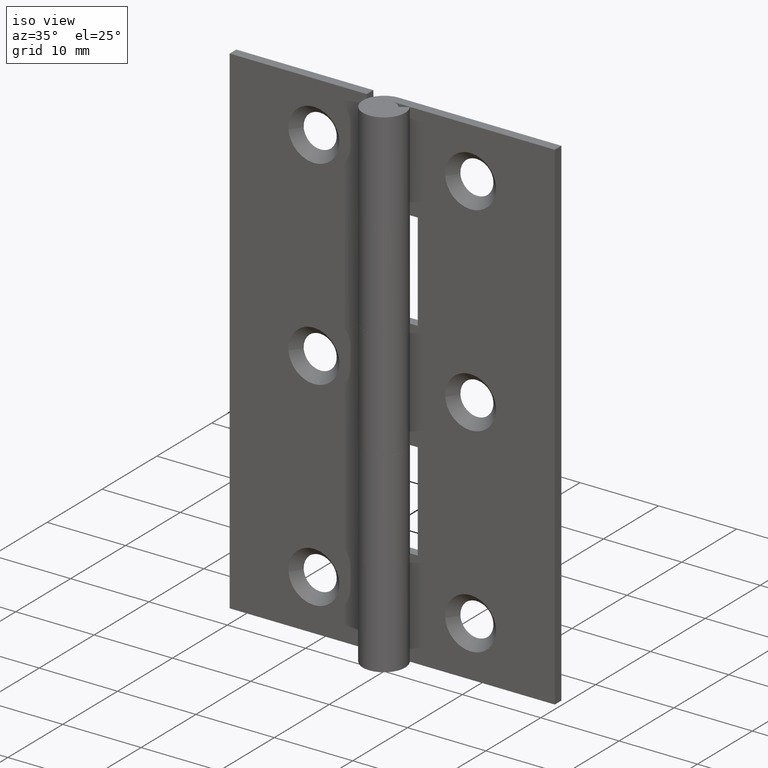
[diagram: clean part render]
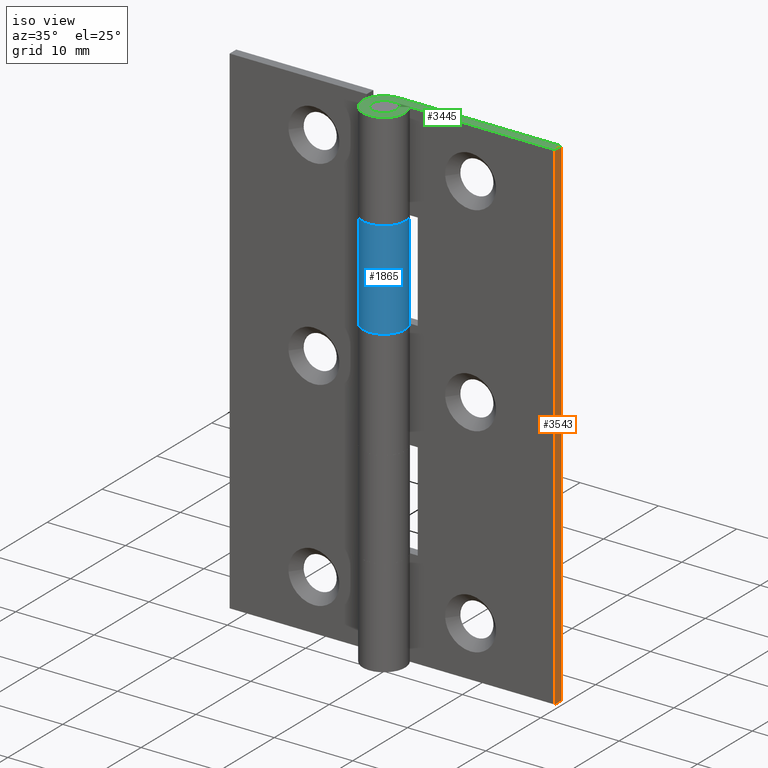
[diagram: same view with three faces highlighted in distinct colors, each labeled with its STEP entity id]
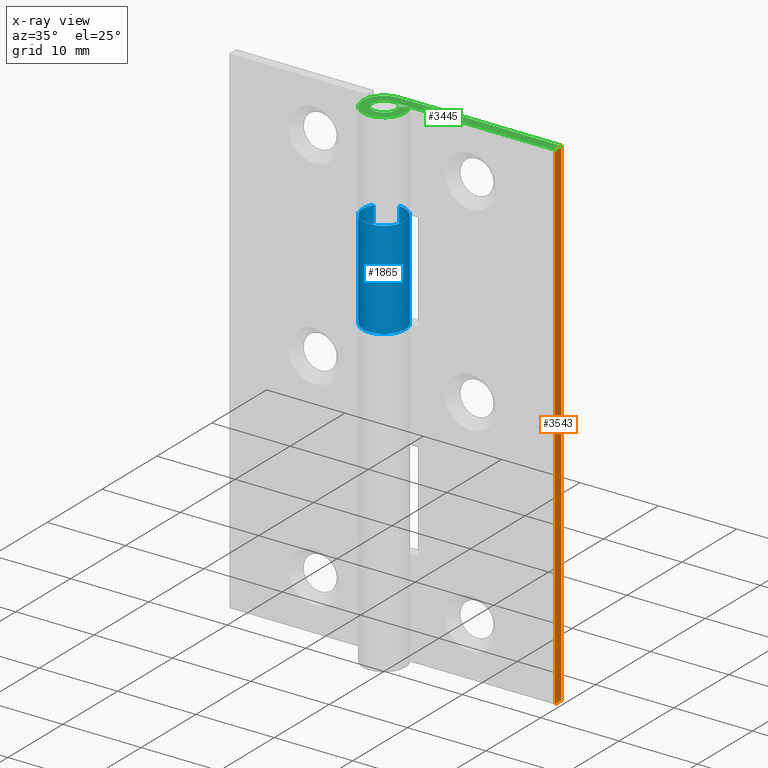
[diagram: x-ray of the same camera — body ghosted, the three highlighted faces saturated]
A machine part, iso view with three faces highlighted in distinct colors.
The next image is the same camera in x-ray (body ghosted, the three faces saturated) — at least one of them is partly hidden behind the body in this view.
Their STEP definitions:

[orange] entity #3543 — the highlighted face is a freeform B-spline surface patch.
#3375=CARTESIAN_POINT('',(20.750000000000000,1.500000000000000,64.000006999999897));
#3376=VERTEX_POINT('',#3375);
#3382=CARTESIAN_POINT('',(20.750000000000000,2.700001000000000,64.000006999999897));
#3383=VERTEX_POINT('',#3382);
#3384=CARTESIAN_POINT('',(20.750000000000000,1.500000000000000,64.000006999999897));
#3385=CARTESIAN_POINT('',(20.750000000000000,2.700001000000000,64.000006999999897));
#3386=QUASI_UNIFORM_CURVE('',1,(#3384,#3385),.UNSPECIFIED.,.F.,.U.);
#3387=EDGE_CURVE('',#3376,#3383,#3386,.T.);
#3453=CARTESIAN_POINT('',(20.750000000000000,1.500000000000000,0.0));
#3454=VERTEX_POINT('',#3453);
#3509=CARTESIAN_POINT('',(20.750000000000000,2.700001000000000,0.0));
#3510=VERTEX_POINT('',#3509);
#3516=CARTESIAN_POINT('',(20.750000000000000,1.500000000000000,0.0));
#3517=CARTESIAN_POINT('',(20.750000000000000,2.700001000000000,0.0));
#3518=QUASI_UNIFORM_CURVE('',1,(#3516,#3517),.UNSPECIFIED.,.F.,.U.);
#3519=EDGE_CURVE('',#3454,#3510,#3518,.T.);
#3524=CARTESIAN_POINT('',(20.750000000000000,1.440059952375835,67.196807826391733));
#3525=CARTESIAN_POINT('',(20.750000000000000,1.440059952375835,-3.196801970801143));
#3526=CARTESIAN_POINT('',(20.750000000000000,2.759941079810700,67.196807826391733));
#3527=CARTESIAN_POINT('',(20.750000000000000,2.759941079810700,-3.196801970801144));
#3528=B_SPLINE_SURFACE_WITH_KNOTS('',1,1,((#3524,#3526),(#3525,#3527)),.UNSPECIFIED.,.F.,.F.,.U.,(2,2),(2,2),(0.0,70.393609797192880),(0.041708334948495,0.958291687403247),.UNSPECIFIED.);
#3529=ORIENTED_EDGE('',*,*,#3387,.F.);
#3530=CARTESIAN_POINT('',(20.750000000000000,1.500000000000000,0.0));
#3531=CARTESIAN_POINT('',(20.750000000000000,1.500000000000000,64.000006999999897));
#3532=QUASI_UNIFORM_CURVE('',1,(#3530,#3531),.UNSPECIFIED.,.F.,.U.);
#3533=EDGE_CURVE('',#3454,#3376,#3532,.T.);
#3534=ORIENTED_EDGE('',*,*,#3533,.F.);
#3535=ORIENTED_EDGE('',*,*,#3519,.T.);
#3536=CARTESIAN_POINT('',(20.750000000000000,2.700001000000000,0.0));
#3537=CARTESIAN_POINT('',(20.750000000000000,2.700001000000000,64.000006999999897));
#3538=QUASI_UNIFORM_CURVE('',1,(#3536,#3537),.UNSPECIFIED.,.F.,.U.);
#3539=EDGE_CURVE('',#3510,#3383,#3538,.T.);
#3540=ORIENTED_EDGE('',*,*,#3539,.T.);
#3541=EDGE_LOOP('',(#3529,#3534,#3535,#3540));
#3542=FACE_OUTER_BOUND('',#3541,.T.);
#3543=ADVANCED_FACE('',(#3542),#3528,.T.);

[blue] entity #1865 — the highlighted face is a freeform B-spline surface patch.
#1284=CARTESIAN_POINT('',(-2.277608394786080,1.450000000000000,51.500006999999897));
#1285=VERTEX_POINT('',#1284);
#1286=CARTESIAN_POINT('',(1.653236E-016,2.700001000000000,51.500006999999897));
#1287=VERTEX_POINT('',#1286);
#1288=CARTESIAN_POINT('',(-2.277608394786080,1.450000000000000,51.500006999999897));
#1289=CARTESIAN_POINT('',(-3.402760049365833,-0.317348882027743,51.500006999999904));
#1290=CARTESIAN_POINT('',(-1.970202022019799,-1.846159761025622,51.500006999999897));
#1291=CARTESIAN_POINT('',(-0.537643994673765,-3.374970640023501,51.500006999999904));
#1292=CARTESIAN_POINT('',(1.299038105676659,-2.366959575708922,51.500006999999897));
#1293=CARTESIAN_POINT('',(3.135720206027081,-1.358948511394346,51.500006999999904));
#1294=CARTESIAN_POINT('',(2.615415091760209,0.670526597772459,51.500006999999897));
#1295=CARTESIAN_POINT('',(2.095109977493337,2.700001706939268,51.500006999999904));
#1296=CARTESIAN_POINT('',(1.653236E-016,2.700001000000000,51.500006999999897));
#1304=(BOUNDED_CURVE()B_SPLINE_CURVE(2,(#1288,#1289,#1290,#1291,#1292,#1293,#1294,#1295,#1296),.UNSPECIFIED.,.F.,.U.)B_SPLINE_CURVE_WITH_KNOTS((3,2,2,2,3),(0.0,0.250000000000000,0.500000000000000,0.750000000000000,1.0),.UNSPECIFIED.)CURVE()GEOMETRIC_REPRESENTATION_ITEM()RATIONAL_B_SPLINE_CURVE((1.0,0.790045133626194,1.0,0.790045133626194,1.0,0.790045133626194,1.0,0.790045133626194,1.0))REPRESENTATION_ITEM(''));
#1305=EDGE_CURVE('',#1285,#1287,#1304,.T.);
#1497=CARTESIAN_POINT('',(1.653236E-016,2.700001000000000,39.000006999999897));
#1498=VERTEX_POINT('',#1497);
#1504=CARTESIAN_POINT('',(-2.277608394786080,1.450000000000000,39.000006999999947));
#1505=VERTEX_POINT('',#1504);
#1506=CARTESIAN_POINT('',(1.653236E-016,2.700001000000000,39.000006999999897));
#1507=CARTESIAN_POINT('',(2.095109977493334,2.700001706939267,39.000006999999854));
#1508=CARTESIAN_POINT('',(2.615415091760208,0.670526597772459,39.000006999999869));
#1509=CARTESIAN_POINT('',(3.135720206027082,-1.358948511394347,39.000006999999869));
#1510=CARTESIAN_POINT('',(1.299038105676659,-2.366959575708922,39.000006999999933));
#1511=CARTESIAN_POINT('',(-0.537643994673764,-3.374970640023498,39.000006999999975));
#1512=CARTESIAN_POINT('',(-1.970202022019797,-1.846159761025621,39.000006999999982));
#1513=CARTESIAN_POINT('',(-3.402760049365831,-0.317348882027742,39.000006999999997));
#1514=CARTESIAN_POINT('',(-2.277608394786080,1.450000000000000,39.000006999999947));
#1522=(BOUNDED_CURVE()B_SPLINE_CURVE(2,(#1506,#1507,#1508,#1509,#1510,#1511,#1512,#1513,#1514),.UNSPECIFIED.,.F.,.U.)B_SPLINE_CURVE_WITH_KNOTS((3,2,2,2,3),(0.0,0.250000000000000,0.500000000000000,0.750000000000000,1.0),.UNSPECIFIED.)CURVE()GEOMETRIC_REPRESENTATION_ITEM()RATIONAL_B_SPLINE_CURVE((1.0,0.790045133626194,1.0,0.790045133626194,1.0,0.790045133626194,1.0,0.790045133626194,1.0))REPRESENTATION_ITEM(''));
#1523=EDGE_CURVE('',#1498,#1505,#1522,.T.);
#1829=CARTESIAN_POINT('',(-2.225140709279442,1.529296839697048,51.812506999999897));
#1830=CARTESIAN_POINT('',(-2.225140709279442,1.529296839697048,38.679694499999862));
#1831=CARTESIAN_POINT('',(-4.147730332970872,-1.268088421205942,51.812506999999911));
#1832=CARTESIAN_POINT('',(-4.147730332970872,-1.268088421205942,38.679694499999854));
#1833=CARTESIAN_POINT('',(-0.989553312155601,-2.512127433551466,51.812506999999897));
#1834=CARTESIAN_POINT('',(-0.989553312155601,-2.512127433551466,38.679694499999862));
#1835=CARTESIAN_POINT('',(2.168623708659669,-3.756166445896991,51.812506999999911));
#1836=CARTESIAN_POINT('',(2.168623708659669,-3.756166445896991,38.679694499999854));
#1837=CARTESIAN_POINT('',(2.670342831077175,-0.399085410049946,51.812506999999897));
#1838=CARTESIAN_POINT('',(2.670342831077175,-0.399085410049946,38.679694499999862));
#1839=CARTESIAN_POINT('',(3.172061953494680,2.957995625797097,51.812506999999911));
#1840=CARTESIAN_POINT('',(3.172061953494680,2.957995625797097,38.679694499999854));
#1841=CARTESIAN_POINT('',(-0.211839558465185,2.691676801079445,51.812506999999897));
#1842=CARTESIAN_POINT('',(-0.211839558465185,2.691676801079445,38.679694499999862));
#1850=(BOUNDED_SURFACE()B_SPLINE_SURFACE(1,2,((#1829,#1831,#1833,#1835,#1837,#1839,#1841),(#1830,#1832,#1834,#1836,#1838,#1840,#1842)),.UNSPECIFIED.,.F.,.F.,.U.)B_SPLINE_SURFACE_WITH_KNOTS((2,2),(3,2,2,3),(0.0,13.132812500000041),(0.0,5.209301600829762,10.418603201659520,15.627904802489290),.UNSPECIFIED.)GEOMETRIC_REPRESENTATION_ITEM()RATIONAL_B_SPLINE_SURFACE(((1.0,0.622514636637620,1.0,0.622514636637620,1.0,0.622514636637620,1.0),(1.0,0.622514636637620,1.0,0.622514636637620,1.0,0.622514636637620,1.0)))REPRESENTATION_ITEM('')SURFACE());
#1851=ORIENTED_EDGE('',*,*,#1305,.F.);
#1852=CARTESIAN_POINT('',(-2.277608394786080,1.450000000000000,51.500006999999897));
#1853=CARTESIAN_POINT('',(-2.277608394786080,1.450000000000000,39.000006999999947));
#1854=QUASI_UNIFORM_CURVE('',1,(#1852,#1853),.UNSPECIFIED.,.F.,.U.);
#1855=EDGE_CURVE('',#1285,#1505,#1854,.T.);
#1856=ORIENTED_EDGE('',*,*,#1855,.T.);
#1857=ORIENTED_EDGE('',*,*,#1523,.F.);
#1858=CARTESIAN_POINT('',(1.653236E-016,2.700001000000000,51.500006999999897));
#1859=CARTESIAN_POINT('',(1.653236E-016,2.700001000000000,39.000006999999897));
#1860=QUASI_UNIFORM_CURVE('',1,(#1858,#1859),.UNSPECIFIED.,.F.,.U.);
#1861=EDGE_CURVE('',#1287,#1498,#1860,.T.);
#1862=ORIENTED_EDGE('',*,*,#1861,.F.);
#1863=EDGE_LOOP('',(#1851,#1856,#1857,#1862));
#1864=FACE_OUTER_BOUND('',#1863,.T.);
#1865=ADVANCED_FACE('',(#1864),#1850,.T.);

[green] entity #3445 — the highlighted face is a freeform B-spline surface patch.
#3368=CARTESIAN_POINT('',(-3.871088339275239,-2.968772830180692,64.000006999999897));
#3369=CARTESIAN_POINT('',(21.921316707924792,-2.968772830180692,64.000006999999897));
#3370=CARTESIAN_POINT('',(-3.871088339275239,2.969685646317828,64.000006999999897));
#3371=CARTESIAN_POINT('',(21.921316707924792,2.969685646317828,64.000006999999897));
#3372=B_SPLINE_SURFACE_WITH_KNOTS('',1,1,((#3368,#3370),(#3369,#3371)),.UNSPECIFIED.,.F.,.F.,.U.,(2,2),(2,2),(0.0,25.792405047200031),(0.0,5.938458476498520),.UNSPECIFIED.);
#3373=CARTESIAN_POINT('',(-2.755364E-016,1.500000000000000,64.000006999999897));
#3374=VERTEX_POINT('',#3373);
#3375=CARTESIAN_POINT('',(20.750000000000000,1.500000000000000,64.000006999999897));
#3376=VERTEX_POINT('',#3375);
#3377=CARTESIAN_POINT('',(-2.755364E-016,1.500000000000000,64.000006999999897));
#3378=CARTESIAN_POINT('',(20.750000000000000,1.500000000000000,64.000006999999897));
#3379=QUASI_UNIFORM_CURVE('',1,(#3377,#3378),.UNSPECIFIED.,.F.,.U.);
#3380=EDGE_CURVE('',#3374,#3376,#3379,.T.);
#3381=ORIENTED_EDGE('',*,*,#3380,.T.);
#3382=CARTESIAN_POINT('',(20.750000000000000,2.700001000000000,64.000006999999897));
#3383=VERTEX_POINT('',#3382);
#3384=CARTESIAN_POINT('',(20.750000000000000,1.500000000000000,64.000006999999897));
#3385=CARTESIAN_POINT('',(20.750000000000000,2.700001000000000,64.000006999999897));
#3386=QUASI_UNIFORM_CURVE('',1,(#3384,#3385),.UNSPECIFIED.,.F.,.U.);
#3387=EDGE_CURVE('',#3376,#3383,#3386,.T.);
#3388=ORIENTED_EDGE('',*,*,#3387,.T.);
#3389=CARTESIAN_POINT('',(0.0,2.700001000000000,64.000006999999897));
#3390=VERTEX_POINT('',#3389);
#3391=CARTESIAN_POINT('',(20.750000000000000,2.700001000000000,64.000006999999897));
#3392=CARTESIAN_POINT('',(0.0,2.700001000000000,64.000006999999897));
#3393=QUASI_UNIFORM_CURVE('',1,(#3391,#3392),.UNSPECIFIED.,.F.,.U.);
#3394=EDGE_CURVE('',#3383,#3390,#3393,.T.);
#3395=ORIENTED_EDGE('',*,*,#3394,.T.);
#3396=CARTESIAN_POINT('',(2.277608394786080,1.450000000000000,64.000006999999897));
#3397=VERTEX_POINT('',#3396);
#3398=CARTESIAN_POINT('',(2.277608394786080,1.450000000000000,64.000006999999897));
#3399=CARTESIAN_POINT('',(3.402760049365833,-0.317348882027743,64.000006999999897));
#3400=CARTESIAN_POINT('',(1.970202022019799,-1.846159761025622,64.000006999999897));
#3401=CARTESIAN_POINT('',(0.537643994673765,-3.374970640023501,64.000006999999897));
#3402=CARTESIAN_POINT('',(-1.299038105676659,-2.366959575708922,64.000006999999897));
#3403=CARTESIAN_POINT('',(-3.135720206027081,-1.358948511394346,64.000006999999897));
#3404=CARTESIAN_POINT('',(-2.615415091760209,0.670526597772459,64.000006999999897));
#3405=CARTESIAN_POINT('',(-2.095109977493337,2.700001706939268,64.000006999999897));
#3406=CARTESIAN_POINT('',(0.0,2.700001000000000,64.000006999999897));
#3414=(BOUNDED_CURVE()B_SPLINE_CURVE(2,(#3398,#3399,#3400,#3401,#3402,#3403,#3404,#3405,#3406),.UNSPECIFIED.,.F.,.U.)B_SPLINE_CURVE_WITH_KNOTS((3,2,2,2,3),(0.0,0.250000000000000,0.500000000000000,0.750000000000000,1.0),.UNSPECIFIED.)CURVE()GEOMETRIC_REPRESENTATION_ITEM()RATIONAL_B_SPLINE_CURVE((1.0,0.790045133626194,1.0,0.790045133626194,1.0,0.790045133626194,1.0,0.790045133626194,1.0))REPRESENTATION_ITEM(''));
#3415=EDGE_CURVE('',#3397,#3390,#3414,.T.);
#3416=ORIENTED_EDGE('',*,*,#3415,.F.);
#3417=CARTESIAN_POINT('',(1.265337997103376,0.805555555555552,64.000006999999897));
#3418=VERTEX_POINT('',#3417);
#3419=CARTESIAN_POINT('',(2.277608394786080,1.450000000000000,64.000006999999897));
#3420=CARTESIAN_POINT('',(1.265337997103376,0.805555555555552,64.000006999999897));
#3421=QUASI_UNIFORM_CURVE('',1,(#3419,#3420),.UNSPECIFIED.,.F.,.U.);
#3422=EDGE_CURVE('',#3397,#3418,#3421,.T.);
#3423=ORIENTED_EDGE('',*,*,#3422,.T.);
#3424=CARTESIAN_POINT('',(1.265337997103377,0.805555555555553,64.000006999999897));
#3425=CARTESIAN_POINT('',(1.890422249647681,-0.176304541715821,64.000006999999897));
#3426=CARTESIAN_POINT('',(1.094556678899885,-1.025644030195493,64.000006999999897));
#3427=CARTESIAN_POINT('',(0.298691108152089,-1.874983518675165,64.000006999999897));
#3428=CARTESIAN_POINT('',(-0.721687836487034,-1.314977819838291,64.000006999999897));
#3429=CARTESIAN_POINT('',(-1.742066781126156,-0.754972121001417,64.000006999999897));
#3430=CARTESIAN_POINT('',(-1.453008384311226,0.372513939499290,64.000006999999897));
#3431=CARTESIAN_POINT('',(-1.163949987496296,1.500000000000000,64.000006999999897));
#3432=CARTESIAN_POINT('',(0.0,1.500000000000000,64.000006999999897));
#3440=(BOUNDED_CURVE()B_SPLINE_CURVE(2,(#3424,#3425,#3426,#3427,#3428,#3429,#3430,#3431,#3432),.UNSPECIFIED.,.F.,.U.)B_SPLINE_CURVE_WITH_KNOTS((3,2,2,2,3),(0.0,0.250000000000000,0.500000000000000,0.750000000000000,1.0),.UNSPECIFIED.)CURVE()GEOMETRIC_REPRESENTATION_ITEM()RATIONAL_B_SPLINE_CURVE((1.0,0.790045133626194,1.0,0.790045133626194,1.0,0.790045133626194,1.0,0.790045133626194,1.0))REPRESENTATION_ITEM(''));
#3441=EDGE_CURVE('',#3418,#3374,#3440,.T.);
#3442=ORIENTED_EDGE('',*,*,#3441,.T.);
#3443=EDGE_LOOP('',(#3381,#3388,#3395,#3416,#3423,#3442));
#3444=FACE_OUTER_BOUND('',#3443,.T.);
#3445=ADVANCED_FACE('',(#3444),#3372,.T.);